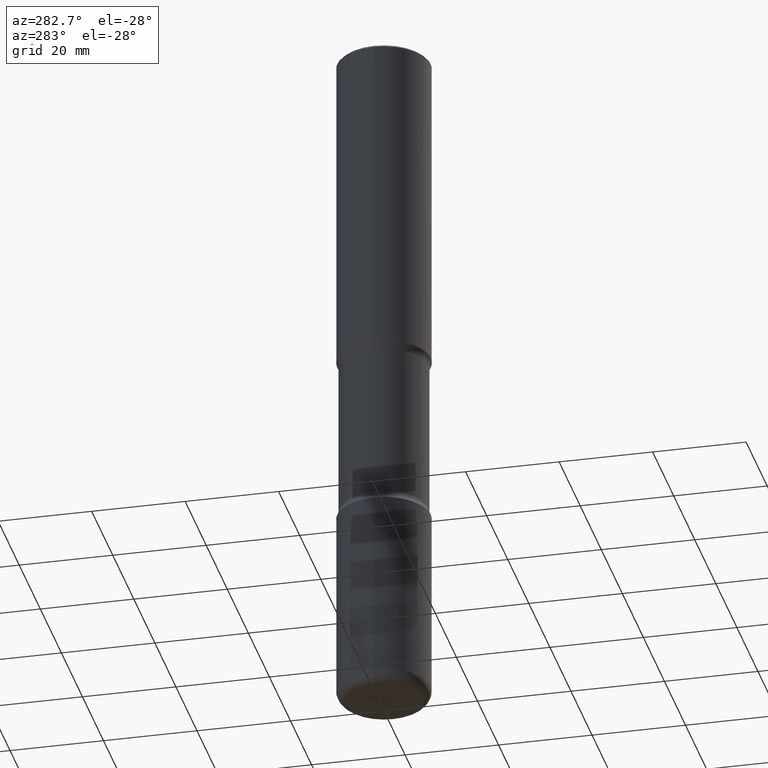
[diagram: clean part render]
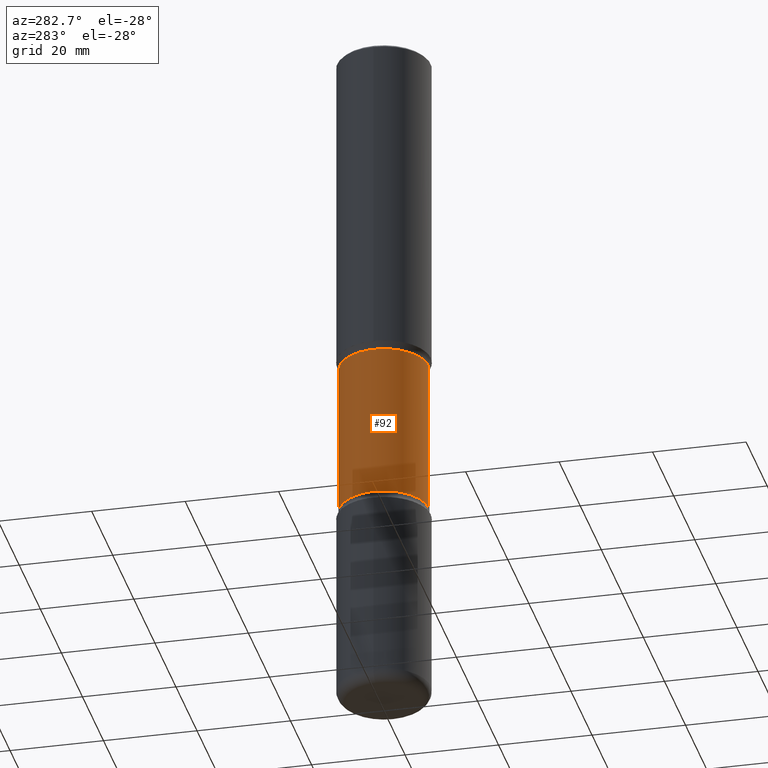
[diagram: same view with one face highlighted and labeled with its STEP entity id]
A machine part, auxiliary view. The second image highlights one B-rep face of the part: STEP entity #92.
In plain terms, the highlighted cylindrical surface (partial cylindrical patch) has radius 9.4996 mm, axis along (0, -0, -1).
Its self-contained STEP definition (entity closure, byte-faithful):
#3 = VECTOR ( 'NONE', #381, 39.37007874015748143 ) ;
#22 = DIRECTION ( 'NONE',  ( 2.499563752616943710E-29, -3.414014296659653741E-15, -1.000000000000000000 ) ) ;
#59 = DIRECTION ( 'NONE',  ( 6.982962677686266711E-15, 1.000000000000000000, -2.921762560068729411E-15 ) ) ;
#77 = CARTESIAN_POINT ( 'NONE',  ( 2.611628041454809941E-15, 0.3739999999999796820, -5.905499999999999972 ) ) ;
#92 = ADVANCED_FACE ( 'NONE', ( #451 ), #546, .T. ) ;
#106 = CARTESIAN_POINT ( 'NONE',  ( -2.633402156444536217E-15, -0.3740000000000101577, -2.823256588393413313 ) ) ;
#122 = CARTESIAN_POINT ( 'NONE',  ( 2.611628041454766160E-15, 0.3739999999999856772, -4.145243411606584161 ) ) ;
#128 = CARTESIAN_POINT ( 'NONE',  ( 2.611628041454733028E-15, 0.3739999999999901736, -2.823256588393415534 ) ) ;
#148 = CARTESIAN_POINT ( 'NONE',  ( -2.565826251166408560E-15, -0.3740000000000206493, -5.905499999999997307 ) ) ;
#179 = AXIS2_PLACEMENT_3D ( 'NONE', #410, #22, #59 ) ;
#182 = VERTEX_POINT ( 'NONE', #128 ) ;
#186 = EDGE_CURVE ( 'NONE', #522, #560, #505, .T. ) ;
#225 = AXIS2_PLACEMENT_3D ( 'NONE', #480, #533, #259 ) ;
#249 = ORIENTED_EDGE ( 'NONE', *, *, #550, .T. ) ;
#253 = VECTOR ( 'NONE', #526, 39.37007874015748143 ) ;
#259 = DIRECTION ( 'NONE',  ( 6.982962677686266711E-15, 1.000000000000000000, -2.921762560068729411E-15 ) ) ;
#293 = CIRCLE ( 'NONE', #225, 0.3740000000000001656 ) ;
#309 = AXIS2_PLACEMENT_3D ( 'NONE', #472, #516, #518 ) ;
#326 = EDGE_CURVE ( 'NONE', #490, #522, #355, .T. ) ;
#333 = EDGE_CURVE ( 'NONE', #490, #182, #293, .T. ) ;
#355 = LINE ( 'NONE', #148, #253 ) ;
#381 = DIRECTION ( 'NONE',  ( 2.499563752616943710E-29, -3.414014296659653741E-15, -1.000000000000000000 ) ) ;
#383 = ORIENTED_EDGE ( 'NONE', *, *, #326, .F. ) ;
#386 = EDGE_LOOP ( 'NONE', ( #383, #422, #249, #557 ) ) ;
#410 = CARTESIAN_POINT ( 'NONE',  ( 1.453329336974072664E-28, -2.048779909082575425E-14, -5.905499999999998195 ) ) ;
#422 = ORIENTED_EDGE ( 'NONE', *, *, #333, .T. ) ;
#451 = FACE_OUTER_BOUND ( 'NONE', #386, .T. ) ;
#465 = LINE ( 'NONE', #77, #3 ) ;
#472 = CARTESIAN_POINT ( 'NONE',  ( 1.013341980608738414E-28, -1.447825793226129018E-14, -4.145243411606583273 ) ) ;
#480 = CARTESIAN_POINT ( 'NONE',  ( 6.829029461346524548E-29, -9.964976017815853586E-15, -2.823256588393414646 ) ) ;
#490 = VERTEX_POINT ( 'NONE', #106 ) ;
#505 = CIRCLE ( 'NONE', #309, 0.3740000000000001656 ) ;
#516 = DIRECTION ( 'NONE',  ( 2.499563752616943710E-29, -3.414014296659653741E-15, -1.000000000000000000 ) ) ;
#518 = DIRECTION ( 'NONE',  ( 6.982962677686266711E-15, 1.000000000000000000, -2.921762560068729411E-15 ) ) ;
#522 = VERTEX_POINT ( 'NONE', #549 ) ;
#526 = DIRECTION ( 'NONE',  ( 2.499563752616943710E-29, -3.414014296659653741E-15, -1.000000000000000000 ) ) ;
#533 = DIRECTION ( 'NONE',  ( 2.499563752616943710E-29, -3.414014296659653741E-15, -1.000000000000000000 ) ) ;
#546 = CYLINDRICAL_SURFACE ( 'NONE', #179, 0.3740000000000001656 ) ;
#549 = CARTESIAN_POINT ( 'NONE',  ( -2.633402156444500718E-15, -0.3740000000000146541, -4.145243411606582384 ) ) ;
#550 = EDGE_CURVE ( 'NONE', #182, #560, #465, .T. ) ;
#557 = ORIENTED_EDGE ( 'NONE', *, *, #186, .F. ) ;
#560 = VERTEX_POINT ( 'NONE', #122 ) ;